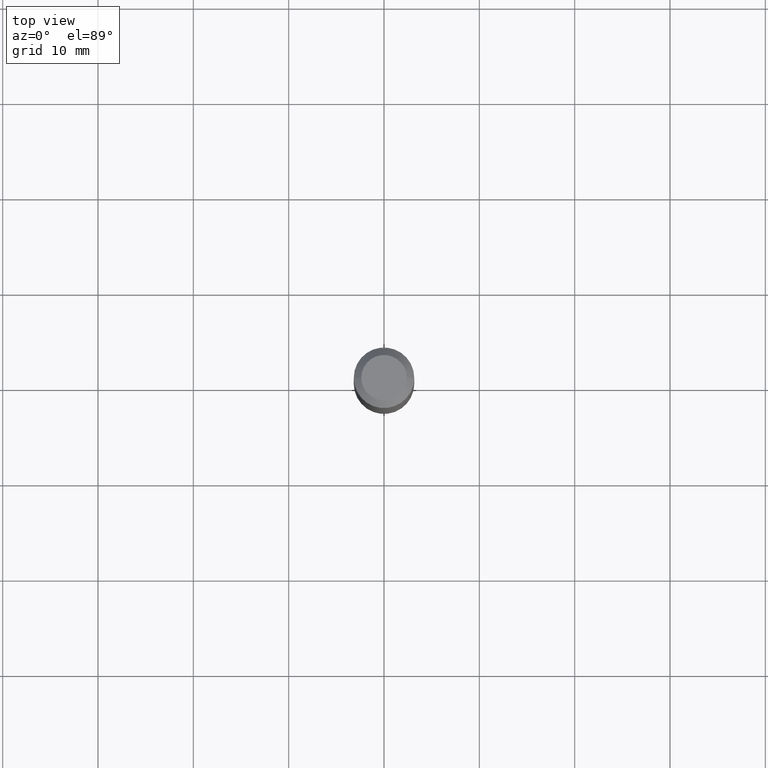
[diagram: clean part render]
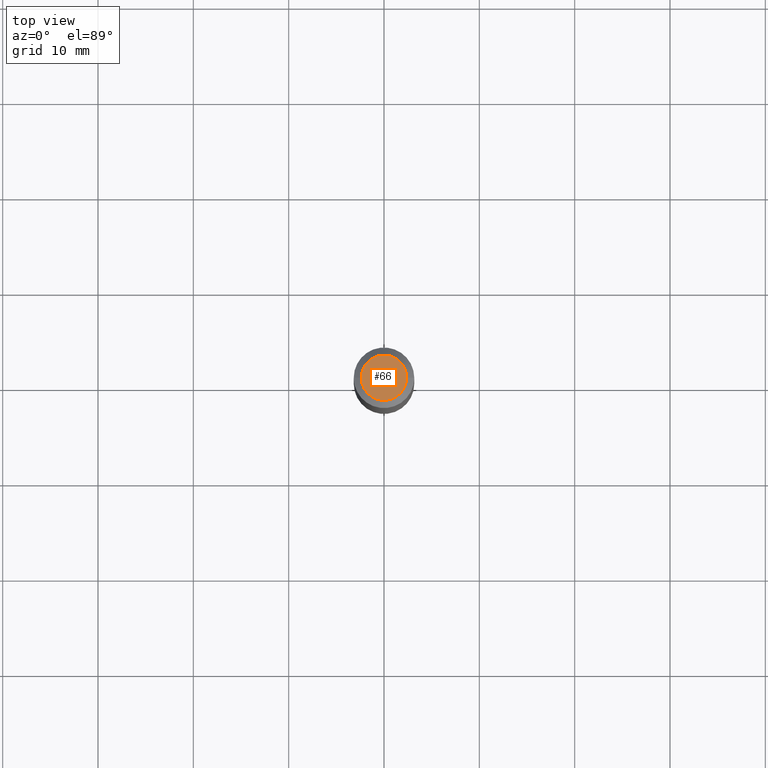
[diagram: same view with one face highlighted and labeled with its STEP entity id]
A machine part, top view. The second image highlights one B-rep face of the part: STEP entity #66.
In plain terms, the highlighted planar face has unit normal (0, -0, -1).
Its self-contained STEP definition (entity closure, byte-faithful):
#41 = FACE_OUTER_BOUND ( 'NONE', #164, .T. ) ;
#46 = AXIS2_PLACEMENT_3D ( 'NONE', #354, #384, #68 ) ;
#66 = ADVANCED_FACE ( 'NONE', ( #41 ), #366, .F. ) ;
#68 = DIRECTION ( 'NONE',  ( 1.000000000000000000, -6.982962677686267499E-15, 4.885088446865700968E-29 ) ) ;
#69 = CARTESIAN_POINT ( 'NONE',  ( 0.09374999999999962530, -8.049213644256825609E-16, 1.922866154350509790E-16 ) ) ;
#86 = CARTESIAN_POINT ( 'NONE',  ( -4.702309198933221376E-45, 6.713651295007710918E-31, 1.922866154350458761E-16 ) ) ;
#110 = DIRECTION ( 'NONE',  ( -1.000000000000000000, 6.982962677686265922E-15, -4.876176775795935793E-29 ) ) ;
#118 = VERTEX_POINT ( 'NONE', #438 ) ;
#160 = AXIS2_PLACEMENT_3D ( 'NONE', #432, #429, #110 ) ;
#164 = EDGE_LOOP ( 'NONE', ( #226, #287 ) ) ;
#168 = DIRECTION ( 'NONE',  ( -2.445468806185136597E-29, 3.491481338843145583E-15, 1.000000000000000000 ) ) ;
#198 = CIRCLE ( 'NONE', #211, 0.09374999999999962530 ) ;
#211 = AXIS2_PLACEMENT_3D ( 'NONE', #86, #168, #306 ) ;
#226 = ORIENTED_EDGE ( 'NONE', *, *, #381, .T. ) ;
#252 = EDGE_CURVE ( 'NONE', #374, #118, #198, .T. ) ;
#287 = ORIENTED_EDGE ( 'NONE', *, *, #252, .T. ) ;
#302 = CIRCLE ( 'NONE', #46, 0.09374999999999962530 ) ;
#306 = DIRECTION ( 'NONE',  ( 1.000000000000000000, -6.982962677686267499E-15, 4.885088446865700968E-29 ) ) ;
#354 = CARTESIAN_POINT ( 'NONE',  ( -4.702309198933221376E-45, 6.713651295007710918E-31, 1.922866154350458761E-16 ) ) ;
#366 = PLANE ( 'NONE',  #160 ) ;
#374 = VERTEX_POINT ( 'NONE', #69 ) ;
#381 = EDGE_CURVE ( 'NONE', #118, #374, #302, .T. ) ;
#384 = DIRECTION ( 'NONE',  ( -2.445468806185136597E-29, 3.491481338843145583E-15, 1.000000000000000000 ) ) ;
#429 = DIRECTION ( 'NONE',  ( 2.438088387897960049E-29, -3.491481338843145188E-15, -1.000000000000000000 ) ) ;
#432 = CARTESIAN_POINT ( 'NONE',  ( -2.351154599466610688E-45, 3.356825647503855459E-31, 9.614330771752293804E-17 ) ) ;
#438 = CARTESIAN_POINT ( 'NONE',  ( -0.09374999999999962530, 7.092071469525090962E-16, 1.922866154350411183E-16 ) ) ;